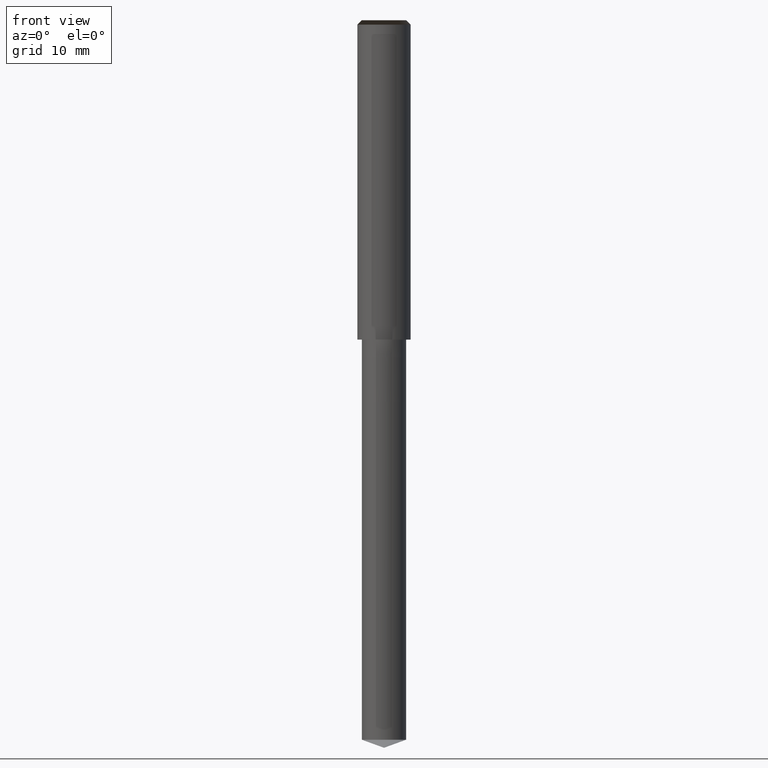
[diagram: clean part render]
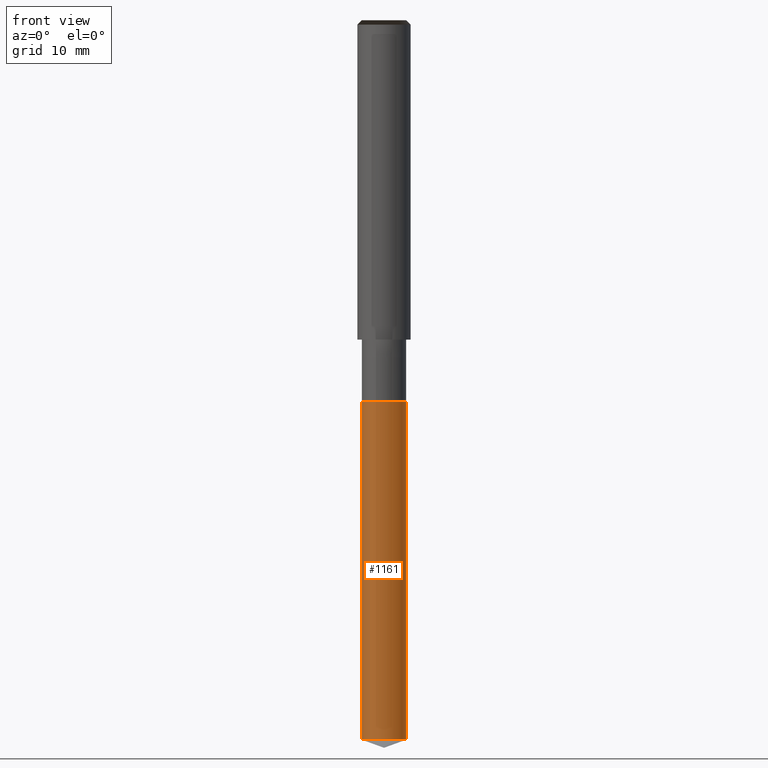
[diagram: same view with one face highlighted and labeled with its STEP entity id]
A machine part, front view. The second image highlights one B-rep face of the part: STEP entity #1161.
In plain terms, the highlighted face is a freeform B-spline surface patch.
Its self-contained STEP definition (entity closure, byte-faithful):
#1011=CARTESIAN_POINT('',(2.5,0.0,-45.090074414334));
#1015=CARTESIAN_POINT('',(-2.5,0.0,-45.090074414334));
#1016=CARTESIAN_POINT('',(2.5,0.0,-7.0));
#1020=CARTESIAN_POINT('',(-2.5,0.0,-7.0));
#1022=CARTESIAN_POINT('',(-2.5,-2.5,-45.090074414334));
#1023=CARTESIAN_POINT('',(0.0,-2.5,-45.090074414334));
#1024=CARTESIAN_POINT('',(2.5,-2.5,-45.090074414334));
#1025=CARTESIAN_POINT('',(-2.5,-2.5,-7.0));
#1026=CARTESIAN_POINT('',(0.0,-2.5,-7.0));
#1027=CARTESIAN_POINT('',(2.5,-2.5,-7.0));
#1142=(
BOUNDED_SURFACE()
B_SPLINE_SURFACE(1,2,(
(#1015,#1022,#1023,#1024,#1011),
(#1020,#1025,#1026,#1027,#1016)
), .UNSPECIFIED.,.F.,.F.,.F.)
B_SPLINE_SURFACE_WITH_KNOTS((2,2),(3,2,3),(
0.0,1.0),(
0.0,0.5,1.0), .UNSPECIFIED.)
GEOMETRIC_REPRESENTATION_ITEM()
RATIONAL_B_SPLINE_SURFACE(((1.0,0.707106781187,1.0,0.707106781187,1.0),
(1.0,0.707106781187,1.0,0.707106781187,1.0)
))
REPRESENTATION_ITEM('')
SURFACE()
);
#1143=(
BOUNDED_CURVE()
B_SPLINE_CURVE(2,(#1011,#1024,#1023,#1022,#1015),.UNSPECIFIED.,.F.,.F.)
B_SPLINE_CURVE_WITH_KNOTS((3,2,3),
(0.0,0.5,1.0),.UNSPECIFIED.)
CURVE()
GEOMETRIC_REPRESENTATION_ITEM()
RATIONAL_B_SPLINE_CURVE((1.0,0.707106781187,1.0,0.707106781187,1.0))
REPRESENTATION_ITEM('')
);
#1144=(
BOUNDED_CURVE()
B_SPLINE_CURVE(1,(#1015,#1020),.UNSPECIFIED.,.F.,.F.)
B_SPLINE_CURVE_WITH_KNOTS((2,2),
(0.0,1.0),.UNSPECIFIED.)
CURVE()
GEOMETRIC_REPRESENTATION_ITEM()
RATIONAL_B_SPLINE_CURVE((1.0,1.0))
REPRESENTATION_ITEM('')
);
#1145=(
BOUNDED_CURVE()
B_SPLINE_CURVE(2,(#1020,#1025,#1026,#1027,#1016),.UNSPECIFIED.,.F.,.F.)
B_SPLINE_CURVE_WITH_KNOTS((3,2,3),
(0.0,0.5,1.0),.UNSPECIFIED.)
CURVE()
GEOMETRIC_REPRESENTATION_ITEM()
RATIONAL_B_SPLINE_CURVE((1.0,0.707106781187,1.0,0.707106781187,1.0))
REPRESENTATION_ITEM('')
);
#1146=(
BOUNDED_CURVE()
B_SPLINE_CURVE(1,(#1016,#1011),.UNSPECIFIED.,.F.,.F.)
B_SPLINE_CURVE_WITH_KNOTS((2,2),
(0.0,1.0),.UNSPECIFIED.)
CURVE()
GEOMETRIC_REPRESENTATION_ITEM()
RATIONAL_B_SPLINE_CURVE((1.0,1.0))
REPRESENTATION_ITEM('')
);
#1147=VERTEX_POINT('',#1011);
#1148=VERTEX_POINT('',#1015);
#1149=VERTEX_POINT('',#1016);
#1150=VERTEX_POINT('',#1020);
#1151=EDGE_CURVE('',#1147,#1148,#1143,.T.);
#1152=EDGE_CURVE('',#1148,#1150,#1144,.T.);
#1153=EDGE_CURVE('',#1150,#1149,#1145,.T.);
#1154=EDGE_CURVE('',#1149,#1147,#1146,.T.);
#1155=ORIENTED_EDGE('',*,*,#1151,.T.);
#1156=ORIENTED_EDGE('',*,*,#1152,.T.);
#1157=ORIENTED_EDGE('',*,*,#1153,.T.);
#1158=ORIENTED_EDGE('',*,*,#1154,.T.);
#1159=EDGE_LOOP('',(#1155,#1156,#1157,#1158));
#1160=FACE_OUTER_BOUND('',#1159,.T.);
#1161=ADVANCED_FACE('',(#1160),#1142,.T.);